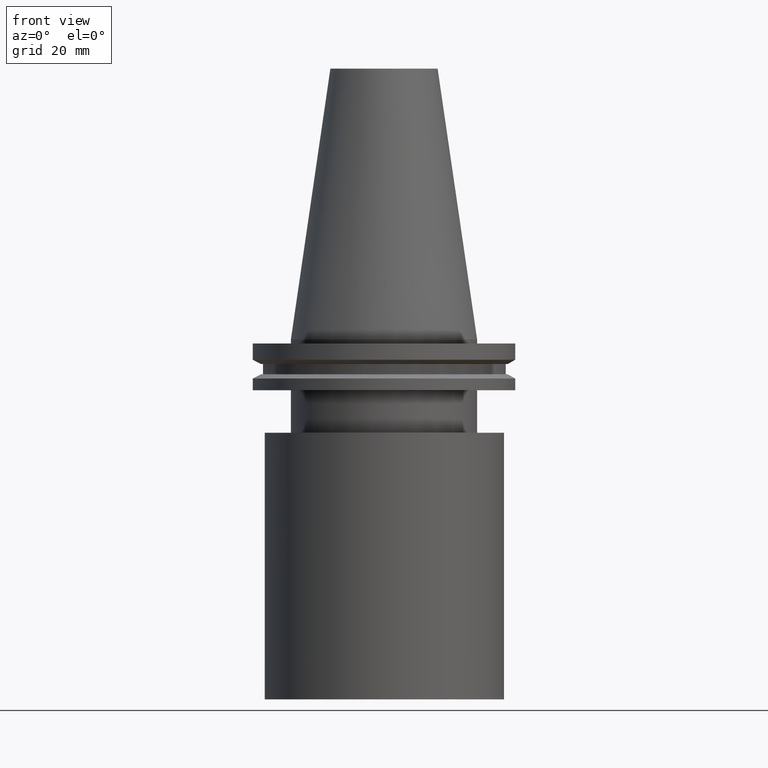
[diagram: clean part render]
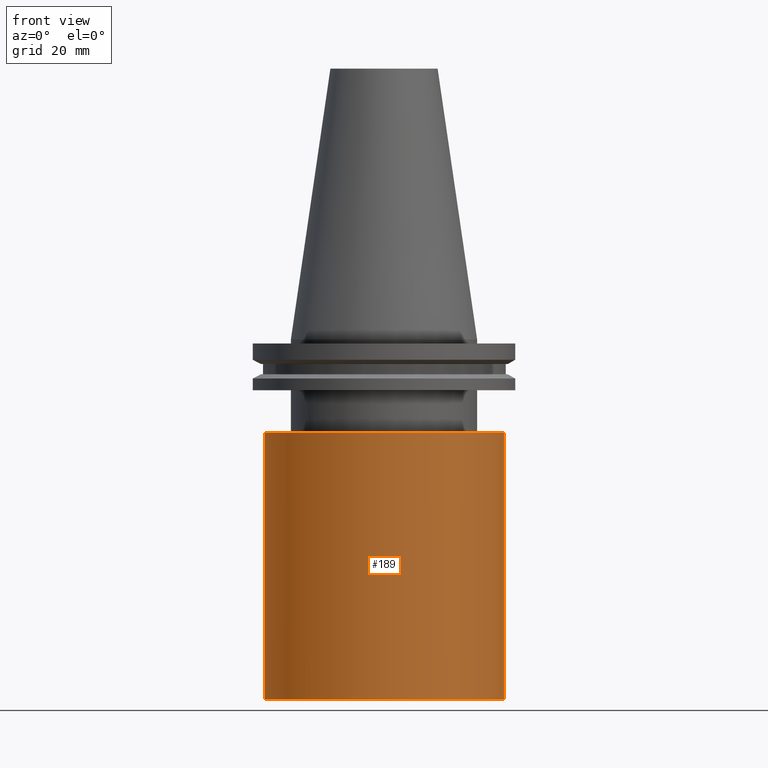
[diagram: same view with one face highlighted and labeled with its STEP entity id]
A machine part, front view. The second image highlights one B-rep face of the part: STEP entity #189.
In plain terms, the highlighted cylindrical surface (bore or boss wall) has radius 45 mm, axis along (-0, -0, 1).
Its self-contained STEP definition (entity closure, byte-faithful):
#2 = ORIENTED_EDGE ( 'NONE', *, *, #246, .F. ) ;
#9 = DIRECTION ( 'NONE',  ( 1.000000000000000000, 0.000000000000000000, 0.000000000000000000 ) ) ;
#41 = DIRECTION ( 'NONE',  ( 1.000000000000000000, 0.000000000000000000, 0.000000000000000000 ) ) ;
#59 = VERTEX_POINT ( 'NONE', #278 ) ;
#60 = AXIS2_PLACEMENT_3D ( 'NONE', #160, #372, #9 ) ;
#70 = CYLINDRICAL_SURFACE ( 'NONE', #386, 45.00000000000000000 ) ;
#121 = VERTEX_POINT ( 'NONE', #225 ) ;
#127 = EDGE_CURVE ( 'NONE', #59, #59, #325, .T. ) ;
#151 = CARTESIAN_POINT ( 'NONE',  ( 0.000000000000000000, 0.000000000000000000, -35.00000000000000000 ) ) ;
#160 = CARTESIAN_POINT ( 'NONE',  ( 0.000000000000000000, 0.000000000000000000, -135.0000000000000000 ) ) ;
#169 = DIRECTION ( 'NONE',  ( -0.000000000000000000, -0.000000000000000000, 1.000000000000000000 ) ) ;
#183 = DIRECTION ( 'NONE',  ( 1.000000000000000000, 0.000000000000000000, 0.000000000000000000 ) ) ;
#189 = ADVANCED_FACE ( 'NONE', ( #235, #348 ), #70, .T. ) ;
#216 = EDGE_LOOP ( 'NONE', ( #2 ) ) ;
#225 = CARTESIAN_POINT ( 'NONE',  ( 45.00000000000000000, 0.000000000000000000, -35.00000000000000000 ) ) ;
#235 = FACE_OUTER_BOUND ( 'NONE', #216, .T. ) ;
#242 = DIRECTION ( 'NONE',  ( -0.000000000000000000, -0.000000000000000000, 1.000000000000000000 ) ) ;
#246 = EDGE_CURVE ( 'NONE', #121, #121, #373, .T. ) ;
#264 = AXIS2_PLACEMENT_3D ( 'NONE', #151, #242, #183 ) ;
#270 = ORIENTED_EDGE ( 'NONE', *, *, #127, .T. ) ;
#278 = CARTESIAN_POINT ( 'NONE',  ( 45.00000000000000000, 0.000000000000000000, -135.0000000000000000 ) ) ;
#320 = CARTESIAN_POINT ( 'NONE',  ( 0.000000000000000000, 0.000000000000000000, 0.000000000000000000 ) ) ;
#325 = CIRCLE ( 'NONE', #60, 45.00000000000000000 ) ;
#330 = EDGE_LOOP ( 'NONE', ( #270 ) ) ;
#348 = FACE_OUTER_BOUND ( 'NONE', #330, .T. ) ;
#372 = DIRECTION ( 'NONE',  ( -0.000000000000000000, -0.000000000000000000, 1.000000000000000000 ) ) ;
#373 = CIRCLE ( 'NONE', #264, 45.00000000000000000 ) ;
#386 = AXIS2_PLACEMENT_3D ( 'NONE', #320, #169, #41 ) ;